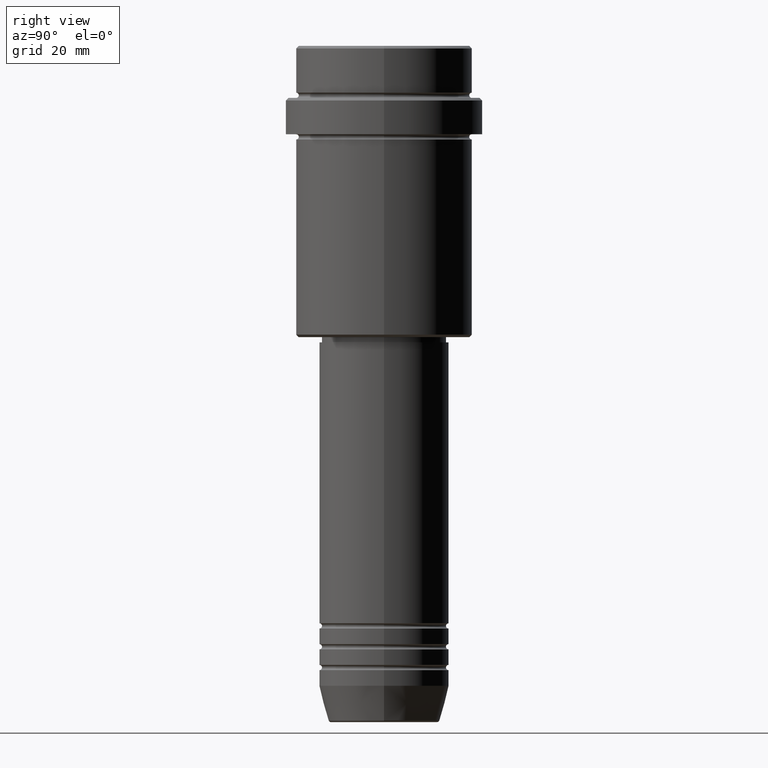
[diagram: clean part render]
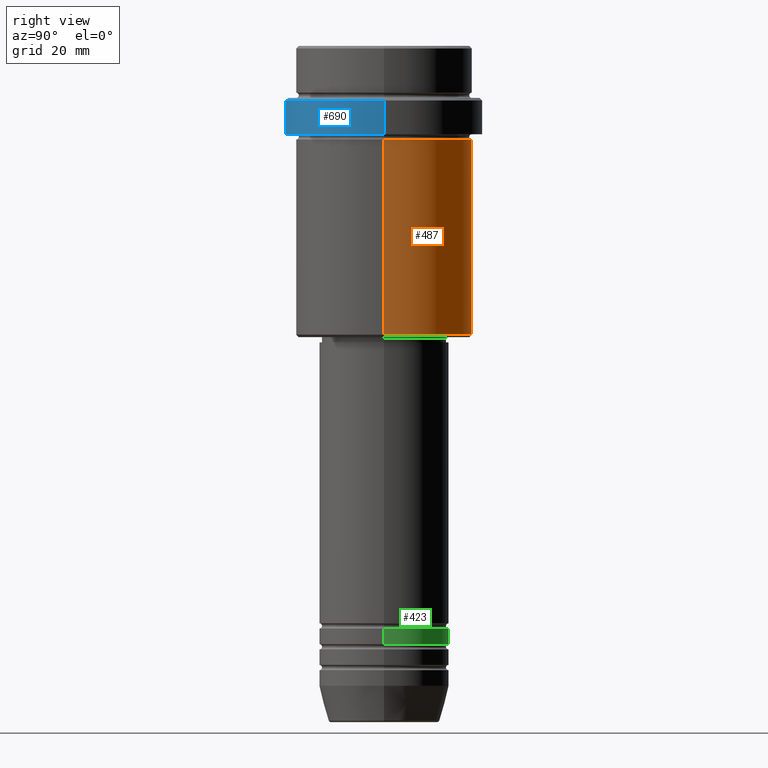
[diagram: same view with three faces highlighted in distinct colors, each labeled with its STEP entity id]
A machine part, right view with three faces highlighted in distinct colors.
Their STEP definitions:

[orange] entity #487 — the highlighted cylindrical surface (partial cylindrical patch) has radius 17 mm, axis along (-0, -0, 1).
#162 = DIRECTION ( 'NONE',  ( -0.000000000000000000, -0.000000000000000000, 1.000000000000000000 ) ) ;
#177 = ORIENTED_EDGE ( 'NONE', *, *, #1016, .T. ) ;
#216 = EDGE_CURVE ( 'NONE', #1156, #703, #532, .T. ) ;
#247 = LINE ( 'NONE', #672, #844 ) ;
#339 = EDGE_CURVE ( 'NONE', #703, #474, #1289, .T. ) ;
#370 = DIRECTION ( 'NONE',  ( 1.000000000000000000, 0.000000000000000000, 0.000000000000000000 ) ) ;
#373 = AXIS2_PLACEMENT_3D ( 'NONE', #635, #994, #1108 ) ;
#445 = CARTESIAN_POINT ( 'NONE',  ( 16.99999999999998579, 0.000000000000000000, -18.00000000000000711 ) ) ;
#460 = VECTOR ( 'NONE', #995, 1000.000000000000000 ) ;
#474 = VERTEX_POINT ( 'NONE', #991 ) ;
#487 = ADVANCED_FACE ( 'NONE', ( #1245 ), #1127, .T. ) ;
#529 = VERTEX_POINT ( 'NONE', #1068 ) ;
#532 = LINE ( 'NONE', #1325, #460 ) ;
#577 = ORIENTED_EDGE ( 'NONE', *, *, #339, .F. ) ;
#635 = CARTESIAN_POINT ( 'NONE',  ( 0.000000000000000000, 0.000000000000000000, -18.00000000000000711 ) ) ;
#662 = EDGE_CURVE ( 'NONE', #529, #474, #247, .T. ) ;
#672 = CARTESIAN_POINT ( 'NONE',  ( -16.99999999999999289, 2.081899558550499885E-15, 0.000000000000000000 ) ) ;
#703 = VERTEX_POINT ( 'NONE', #445 ) ;
#800 = AXIS2_PLACEMENT_3D ( 'NONE', #1359, #1024, #370 ) ;
#822 = AXIS2_PLACEMENT_3D ( 'NONE', #1123, #162, #909 ) ;
#844 = VECTOR ( 'NONE', #1106, 1000.000000000000000 ) ;
#909 = DIRECTION ( 'NONE',  ( -1.000000000000000000, 0.000000000000000000, 0.000000000000000000 ) ) ;
#918 = ORIENTED_EDGE ( 'NONE', *, *, #216, .F. ) ;
#960 = ORIENTED_EDGE ( 'NONE', *, *, #662, .T. ) ;
#991 = CARTESIAN_POINT ( 'NONE',  ( -16.99999999999998579, 2.081899558550499491E-15, -18.00000000000000711 ) ) ;
#994 = DIRECTION ( 'NONE',  ( -0.000000000000000000, -0.000000000000000000, 1.000000000000000000 ) ) ;
#995 = DIRECTION ( 'NONE',  ( -0.000000000000000000, -0.000000000000000000, 1.000000000000000000 ) ) ;
#1016 = EDGE_CURVE ( 'NONE', #1156, #529, #1253, .T. ) ;
#1024 = DIRECTION ( 'NONE',  ( -0.000000000000000000, -0.000000000000000000, 1.000000000000000000 ) ) ;
#1068 = CARTESIAN_POINT ( 'NONE',  ( -16.99999999999999289, 2.081899558550499885E-15, -55.49999999999998579 ) ) ;
#1106 = DIRECTION ( 'NONE',  ( -0.000000000000000000, -0.000000000000000000, 1.000000000000000000 ) ) ;
#1108 = DIRECTION ( 'NONE',  ( 1.000000000000000000, 0.000000000000000000, 0.000000000000000000 ) ) ;
#1123 = CARTESIAN_POINT ( 'NONE',  ( 0.000000000000000000, 0.000000000000000000, -55.49999999999998579 ) ) ;
#1127 = CYLINDRICAL_SURFACE ( 'NONE', #800, 16.99999999999999289 ) ;
#1156 = VERTEX_POINT ( 'NONE', #1355 ) ;
#1245 = FACE_OUTER_BOUND ( 'NONE', #1288, .T. ) ;
#1253 = CIRCLE ( 'NONE', #822, 16.99999999999999289 ) ;
#1288 = EDGE_LOOP ( 'NONE', ( #177, #960, #577, #918 ) ) ;
#1289 = CIRCLE ( 'NONE', #373, 16.99999999999998579 ) ;
#1325 = CARTESIAN_POINT ( 'NONE',  ( 16.99999999999999289, 0.000000000000000000, 0.000000000000000000 ) ) ;
#1355 = CARTESIAN_POINT ( 'NONE',  ( 16.99999999999999289, 0.000000000000000000, -55.49999999999998579 ) ) ;
#1359 = CARTESIAN_POINT ( 'NONE',  ( 0.000000000000000000, 0.000000000000000000, 0.000000000000000000 ) ) ;

[blue] entity #690 — the highlighted cylindrical surface (partial cylindrical patch) has radius 19 mm, axis along (-0, -0, 1).
#18 = DIRECTION ( 'NONE',  ( -0.000000000000000000, -0.000000000000000000, 1.000000000000000000 ) ) ;
#30 = CARTESIAN_POINT ( 'NONE',  ( -18.99999999999998579, 2.326828918379969393E-15, -10.49999999999997158 ) ) ;
#37 = EDGE_CURVE ( 'NONE', #906, #191, #328, .T. ) ;
#98 = DIRECTION ( 'NONE',  ( -0.000000000000000000, -0.000000000000000000, 1.000000000000000000 ) ) ;
#125 = FACE_OUTER_BOUND ( 'NONE', #781, .T. ) ;
#136 = CARTESIAN_POINT ( 'NONE',  ( 18.99999999999998579, 0.000000000000000000, 0.000000000000000000 ) ) ;
#163 = EDGE_CURVE ( 'NONE', #906, #633, #747, .T. ) ;
#191 = VERTEX_POINT ( 'NONE', #763 ) ;
#201 = EDGE_CURVE ( 'NONE', #191, #1386, #655, .T. ) ;
#224 = AXIS2_PLACEMENT_3D ( 'NONE', #894, #675, #442 ) ;
#301 = EDGE_CURVE ( 'NONE', #1386, #633, #1196, .T. ) ;
#328 = CIRCLE ( 'NONE', #642, 18.99999999999998579 ) ;
#390 = ORIENTED_EDGE ( 'NONE', *, *, #201, .T. ) ;
#442 = DIRECTION ( 'NONE',  ( 1.000000000000000000, 0.000000000000000000, 0.000000000000000000 ) ) ;
#515 = VECTOR ( 'NONE', #18, 1000.000000000000000 ) ;
#519 = CARTESIAN_POINT ( 'NONE',  ( -18.99999999999998579, 2.326828918379969393E-15, 0.000000000000000000 ) ) ;
#622 = CARTESIAN_POINT ( 'NONE',  ( 0.000000000000000000, 0.000000000000000000, -17.00000000000000000 ) ) ;
#633 = VERTEX_POINT ( 'NONE', #30 ) ;
#642 = AXIS2_PLACEMENT_3D ( 'NONE', #622, #98, #959 ) ;
#644 = CARTESIAN_POINT ( 'NONE',  ( 0.000000000000000000, 0.000000000000000000, 0.000000000000000000 ) ) ;
#655 = LINE ( 'NONE', #136, #1229 ) ;
#674 = CARTESIAN_POINT ( 'NONE',  ( 18.99999999999998579, 0.000000000000000000, -10.49999999999997158 ) ) ;
#675 = DIRECTION ( 'NONE',  ( 0.000000000000000000, 0.000000000000000000, -1.000000000000000000 ) ) ;
#690 = ADVANCED_FACE ( 'NONE', ( #125 ), #845, .T. ) ;
#709 = AXIS2_PLACEMENT_3D ( 'NONE', #644, #1309, #1297 ) ;
#747 = LINE ( 'NONE', #519, #515 ) ;
#763 = CARTESIAN_POINT ( 'NONE',  ( 18.99999999999998579, 0.000000000000000000, -17.00000000000000000 ) ) ;
#781 = EDGE_LOOP ( 'NONE', ( #881, #1417, #390, #1143 ) ) ;
#845 = CYLINDRICAL_SURFACE ( 'NONE', #709, 18.99999999999998579 ) ;
#881 = ORIENTED_EDGE ( 'NONE', *, *, #163, .F. ) ;
#894 = CARTESIAN_POINT ( 'NONE',  ( 0.000000000000000000, 0.000000000000000000, -10.49999999999997158 ) ) ;
#906 = VERTEX_POINT ( 'NONE', #1005 ) ;
#959 = DIRECTION ( 'NONE',  ( 1.000000000000000000, 0.000000000000000000, 0.000000000000000000 ) ) ;
#1005 = CARTESIAN_POINT ( 'NONE',  ( -18.99999999999998579, 2.326828918379969393E-15, -17.00000000000000000 ) ) ;
#1143 = ORIENTED_EDGE ( 'NONE', *, *, #301, .T. ) ;
#1196 = CIRCLE ( 'NONE', #224, 18.99999999999998579 ) ;
#1208 = DIRECTION ( 'NONE',  ( -0.000000000000000000, -0.000000000000000000, 1.000000000000000000 ) ) ;
#1229 = VECTOR ( 'NONE', #1208, 1000.000000000000000 ) ;
#1297 = DIRECTION ( 'NONE',  ( 1.000000000000000000, 0.000000000000000000, 0.000000000000000000 ) ) ;
#1309 = DIRECTION ( 'NONE',  ( -0.000000000000000000, -0.000000000000000000, 1.000000000000000000 ) ) ;
#1386 = VERTEX_POINT ( 'NONE', #674 ) ;
#1417 = ORIENTED_EDGE ( 'NONE', *, *, #37, .T. ) ;

[green] entity #423 — the highlighted cylindrical surface (partial cylindrical patch) has radius 12.5 mm, axis along (-0, -0, 1).
#182 = DIRECTION ( 'NONE',  ( 1.000000000000000000, 0.000000000000000000, 0.000000000000000000 ) ) ;
#249 = AXIS2_PLACEMENT_3D ( 'NONE', #1354, #490, #182 ) ;
#260 = CYLINDRICAL_SURFACE ( 'NONE', #567, 12.50000000000000000 ) ;
#302 = CARTESIAN_POINT ( 'NONE',  ( 12.50000000000000000, 0.000000000000000000, 0.000000000000000000 ) ) ;
#379 = CARTESIAN_POINT ( 'NONE',  ( -12.50000000000000000, 1.530808498934191521E-15, -114.9999999999998863 ) ) ;
#385 = LINE ( 'NONE', #302, #1316 ) ;
#386 = EDGE_CURVE ( 'NONE', #823, #753, #1100, .T. ) ;
#392 = VECTOR ( 'NONE', #467, 1000.000000000000000 ) ;
#423 = ADVANCED_FACE ( 'NONE', ( #677 ), #260, .T. ) ;
#448 = CARTESIAN_POINT ( 'NONE',  ( 12.50000000000000000, 0.000000000000000000, -114.9999999999998863 ) ) ;
#459 = EDGE_LOOP ( 'NONE', ( #1287, #1267, #486, #1357 ) ) ;
#467 = DIRECTION ( 'NONE',  ( -0.000000000000000000, -0.000000000000000000, 1.000000000000000000 ) ) ;
#486 = ORIENTED_EDGE ( 'NONE', *, *, #386, .F. ) ;
#490 = DIRECTION ( 'NONE',  ( -0.000000000000000000, -0.000000000000000000, 1.000000000000000000 ) ) ;
#527 = LINE ( 'NONE', #989, #392 ) ;
#560 = CARTESIAN_POINT ( 'NONE',  ( -12.50000000000000000, 1.530808498934191521E-15, -111.9999999999998721 ) ) ;
#567 = AXIS2_PLACEMENT_3D ( 'NONE', #1124, #944, #1065 ) ;
#580 = VERTEX_POINT ( 'NONE', #448 ) ;
#669 = AXIS2_PLACEMENT_3D ( 'NONE', #1328, #891, #670 ) ;
#670 = DIRECTION ( 'NONE',  ( 1.000000000000000000, 0.000000000000000000, 0.000000000000000000 ) ) ;
#677 = FACE_OUTER_BOUND ( 'NONE', #459, .T. ) ;
#702 = EDGE_CURVE ( 'NONE', #814, #753, #527, .T. ) ;
#753 = VERTEX_POINT ( 'NONE', #560 ) ;
#766 = EDGE_CURVE ( 'NONE', #580, #814, #1037, .T. ) ;
#814 = VERTEX_POINT ( 'NONE', #379 ) ;
#823 = VERTEX_POINT ( 'NONE', #1391 ) ;
#850 = EDGE_CURVE ( 'NONE', #580, #823, #385, .T. ) ;
#891 = DIRECTION ( 'NONE',  ( -0.000000000000000000, -0.000000000000000000, 1.000000000000000000 ) ) ;
#944 = DIRECTION ( 'NONE',  ( -0.000000000000000000, -0.000000000000000000, 1.000000000000000000 ) ) ;
#989 = CARTESIAN_POINT ( 'NONE',  ( -12.50000000000000000, 1.530808498934191521E-15, 0.000000000000000000 ) ) ;
#1037 = CIRCLE ( 'NONE', #249, 12.50000000000000000 ) ;
#1065 = DIRECTION ( 'NONE',  ( 1.000000000000000000, 0.000000000000000000, 0.000000000000000000 ) ) ;
#1100 = CIRCLE ( 'NONE', #669, 12.50000000000000000 ) ;
#1124 = CARTESIAN_POINT ( 'NONE',  ( 0.000000000000000000, 0.000000000000000000, 0.000000000000000000 ) ) ;
#1166 = DIRECTION ( 'NONE',  ( -0.000000000000000000, -0.000000000000000000, 1.000000000000000000 ) ) ;
#1267 = ORIENTED_EDGE ( 'NONE', *, *, #702, .T. ) ;
#1287 = ORIENTED_EDGE ( 'NONE', *, *, #766, .T. ) ;
#1316 = VECTOR ( 'NONE', #1166, 1000.000000000000000 ) ;
#1328 = CARTESIAN_POINT ( 'NONE',  ( 0.000000000000000000, 0.000000000000000000, -111.9999999999998721 ) ) ;
#1354 = CARTESIAN_POINT ( 'NONE',  ( 0.000000000000000000, 0.000000000000000000, -114.9999999999998863 ) ) ;
#1357 = ORIENTED_EDGE ( 'NONE', *, *, #850, .F. ) ;
#1391 = CARTESIAN_POINT ( 'NONE',  ( 12.50000000000000000, 0.000000000000000000, -111.9999999999998721 ) ) ;